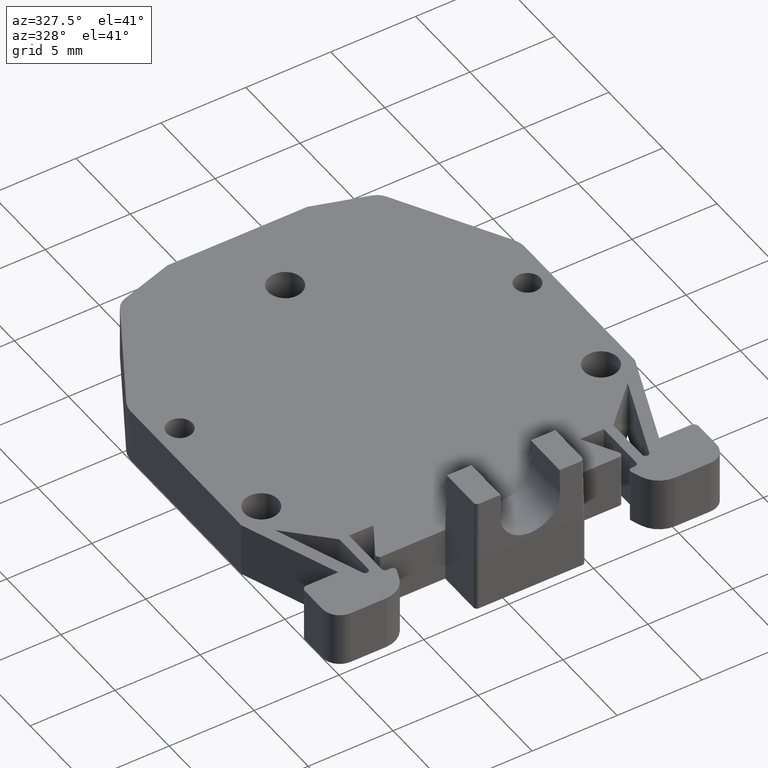
[diagram: clean part render]
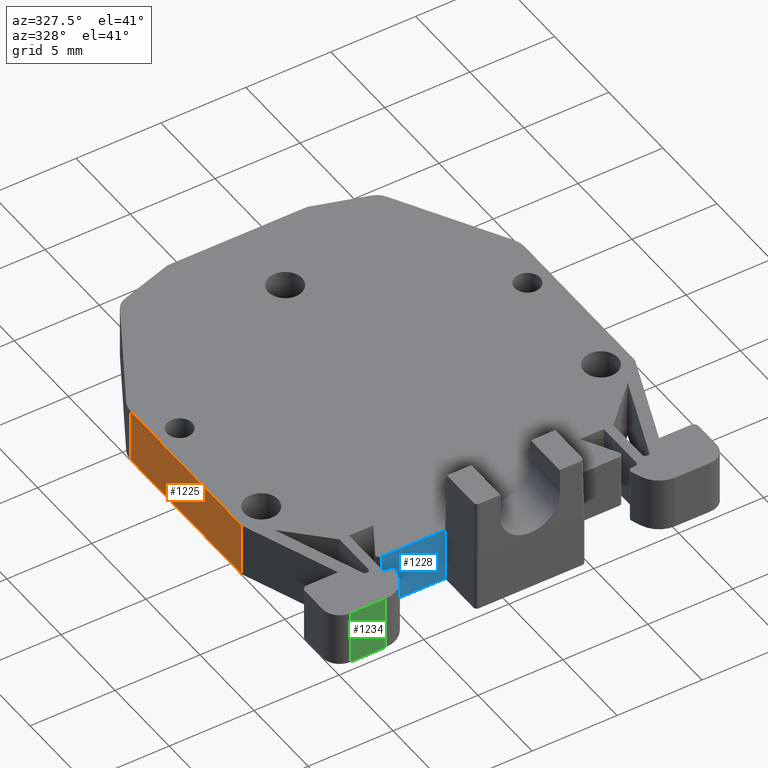
[diagram: same view with three faces highlighted in distinct colors, each labeled with its STEP entity id]
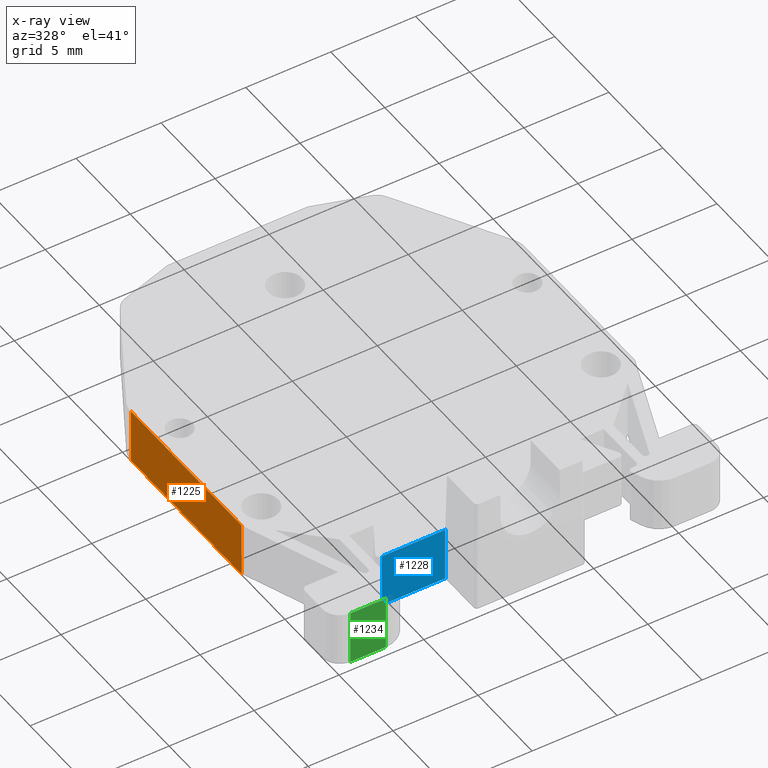
[diagram: x-ray of the same camera — body ghosted, the three highlighted faces saturated]
A machine part, auxiliary view with three faces highlighted in distinct colors.
The next image is the same camera in x-ray (body ghosted, the three faces saturated) — at least one of them is partly hidden behind the body in this view.
Their STEP definitions:

[orange] entity #1225 — the highlighted planar face has unit normal (1, 0, -0).
#398 = DIRECTION ( 'NONE',  ( 1.000000000000000000, 0.0000000000000000000, -0.0000000000000000000 ) ) ;
#401 = DIRECTION ( 'NONE',  ( -0.0000000000000000000, 0.0000000000000000000, -1.000000000000000000 ) ) ;
#405 = PLANE ( 'NONE',  #1403 ) ;
#424 = FACE_OUTER_BOUND ( 'NONE', #1705, .T. ) ;
#429 = CARTESIAN_POINT ( 'NONE',  ( 219.6859378434504900, 448.7791873159291100, 8.439999999999999500 ) ) ;
#618 = CARTESIAN_POINT ( 'NONE',  ( 219.6859378434504900, 478.7419330427189800, 8.439999999999999500 ) ) ;
#621 = CARTESIAN_POINT ( 'NONE',  ( 219.6859378434504900, 468.5237873389456800, 8.439999999999999500 ) ) ;
#624 = CARTESIAN_POINT ( 'NONE',  ( 219.6859378434504900, 478.7419330427189800, 11.63999999999999900 ) ) ;
#714 = CARTESIAN_POINT ( 'NONE',  ( 219.6859378434504900, 468.5237873389452300, 11.64000000000000100 ) ) ;
#858 = EDGE_CURVE ( 'NONE', #1556, #1548, #3384, .T. ) ;
#979 = EDGE_CURVE ( 'NONE', #1654, #1537, #2749, .T. ) ;
#1049 = EDGE_CURVE ( 'NONE', #1548, #1537, #3007, .T. ) ;
#1075 = EDGE_CURVE ( 'NONE', #1654, #1556, #3026, .T. ) ;
#1225 = ADVANCED_FACE ( 'NONE', ( #424 ), #405, .F. ) ;
#1403 = AXIS2_PLACEMENT_3D ( 'NONE', #429, #398, #401 ) ;
#1537 = VERTEX_POINT ( 'NONE', #624 ) ;
#1548 = VERTEX_POINT ( 'NONE', #618 ) ;
#1556 = VERTEX_POINT ( 'NONE', #621 ) ;
#1654 = VERTEX_POINT ( 'NONE', #714 ) ;
#1705 = EDGE_LOOP ( 'NONE', ( #2104, #2084, #2106, #2090 ) ) ;
#2084 = ORIENTED_EDGE ( 'NONE', *, *, #858, .F. ) ;
#2090 = ORIENTED_EDGE ( 'NONE', *, *, #979, .T. ) ;
#2104 = ORIENTED_EDGE ( 'NONE', *, *, #1049, .F. ) ;
#2106 = ORIENTED_EDGE ( 'NONE', *, *, #1075, .F. ) ;
#2308 = VECTOR ( 'NONE', #2984, 1000.000000000000000 ) ;
#2354 = VECTOR ( 'NONE', #3399, 1000.000000000000000 ) ;
#2483 = VECTOR ( 'NONE', #3031, 1000.000000000000000 ) ;
#2511 = VECTOR ( 'NONE', #2787, 1000.000000000000000 ) ;
#2749 = LINE ( 'NONE', #2795, #2511 ) ;
#2787 = DIRECTION ( 'NONE',  ( 0.0000000000000000000, 1.000000000000000000, 0.0000000000000000000 ) ) ;
#2795 = CARTESIAN_POINT ( 'NONE',  ( 219.6859378434504900, 448.7791873159291100, 11.63999999999999900 ) ) ;
#2984 = DIRECTION ( 'NONE',  ( 0.0000000000000000000, -0.0000000000000000000, 1.000000000000000000 ) ) ;
#3005 = CARTESIAN_POINT ( 'NONE',  ( 219.6859378434504900, 478.7419330427189800, 8.439999999999999500 ) ) ;
#3007 = LINE ( 'NONE', #3005, #2308 ) ;
#3026 = LINE ( 'NONE', #3030, #2483 ) ;
#3030 = CARTESIAN_POINT ( 'NONE',  ( 219.6859378434504900, 468.5237873389456800, -5.945817934377599200 ) ) ;
#3031 = DIRECTION ( 'NONE',  ( 0.0000000000000000000, 0.0000000000000000000, -1.000000000000000000 ) ) ;
#3372 = CARTESIAN_POINT ( 'NONE',  ( 219.6859378434504900, 448.7791873159291100, 8.439999999999999500 ) ) ;
#3384 = LINE ( 'NONE', #3372, #2354 ) ;
#3399 = DIRECTION ( 'NONE',  ( 0.0000000000000000000, 1.000000000000000000, 0.0000000000000000000 ) ) ;

[blue] entity #1228 — the highlighted planar face has unit normal (0, -1, 0).
#432 = FACE_OUTER_BOUND ( 'NONE', #1673, .T. ) ;
#434 = PLANE ( 'NONE',  #1398 ) ;
#437 = DIRECTION ( 'NONE',  ( 0.0000000000000000000, -1.000000000000000000, 0.0000000000000000000 ) ) ;
#448 = CARTESIAN_POINT ( 'NONE',  ( 224.3954176410815100, 462.7966268555720700, -5.354219571998889600 ) ) ;
#464 = DIRECTION ( 'NONE',  ( 0.0000000000000000000, -0.0000000000000000000, -1.000000000000000000 ) ) ;
#594 = CARTESIAN_POINT ( 'NONE',  ( 224.2954176410779000, 462.7966268555720700, 8.439999999999999500 ) ) ;
#623 = CARTESIAN_POINT ( 'NONE',  ( 228.0359378434510200, 462.7966268555720700, 8.439999999999999500 ) ) ;
#639 = CARTESIAN_POINT ( 'NONE',  ( 228.0359378434509700, 462.7966268555720700, 11.63999999999993800 ) ) ;
#708 = CARTESIAN_POINT ( 'NONE',  ( 224.2954176410779000, 462.7966268555720700, 11.64000000000000100 ) ) ;
#878 = EDGE_CURVE ( 'NONE', #1527, #1531, #3436, .T. ) ;
#1012 = EDGE_CURVE ( 'NONE', #1625, #1658, #2862, .T. ) ;
#1054 = EDGE_CURVE ( 'NONE', #1658, #1527, #3006, .T. ) ;
#1056 = EDGE_CURVE ( 'NONE', #1531, #1625, #2972, .T. ) ;
#1228 = ADVANCED_FACE ( 'NONE', ( #432 ), #434, .T. ) ;
#1398 = AXIS2_PLACEMENT_3D ( 'NONE', #448, #437, #464 ) ;
#1527 = VERTEX_POINT ( 'NONE', #594 ) ;
#1531 = VERTEX_POINT ( 'NONE', #623 ) ;
#1625 = VERTEX_POINT ( 'NONE', #639 ) ;
#1658 = VERTEX_POINT ( 'NONE', #708 ) ;
#1673 = EDGE_LOOP ( 'NONE', ( #2008, #1978, #2002, #1963 ) ) ;
#1963 = ORIENTED_EDGE ( 'NONE', *, *, #1054, .T. ) ;
#1978 = ORIENTED_EDGE ( 'NONE', *, *, #1056, .T. ) ;
#2002 = ORIENTED_EDGE ( 'NONE', *, *, #1012, .T. ) ;
#2008 = ORIENTED_EDGE ( 'NONE', *, *, #878, .T. ) ;
#2327 = VECTOR ( 'NONE', #2978, 1000.000000000000000 ) ;
#2329 = VECTOR ( 'NONE', #2995, 1000.000000000000000 ) ;
#2389 = VECTOR ( 'NONE', #3406, 1000.000000000000000 ) ;
#2536 = VECTOR ( 'NONE', #2884, 1000.000000000000000 ) ;
#2862 = LINE ( 'NONE', #2864, #2536 ) ;
#2864 = CARTESIAN_POINT ( 'NONE',  ( 231.0956566263090200, 462.7966268555720700, 11.63999999999999900 ) ) ;
#2884 = DIRECTION ( 'NONE',  ( -1.000000000000000000, 0.0000000000000000000, -0.0000000000000000000 ) ) ;
#2972 = LINE ( 'NONE', #2979, #2329 ) ;
#2978 = DIRECTION ( 'NONE',  ( 0.0000000000000000000, -0.0000000000000000000, -1.000000000000000000 ) ) ;
#2979 = CARTESIAN_POINT ( 'NONE',  ( 228.0359378434510500, 462.7966268555720700, -5.354219571998889600 ) ) ;
#2994 = CARTESIAN_POINT ( 'NONE',  ( 224.2954176410815100, 462.7966268555720700, -5.354219571998889600 ) ) ;
#2995 = DIRECTION ( 'NONE',  ( -0.0000000000000000000, 0.0000000000000000000, 1.000000000000000000 ) ) ;
#3006 = LINE ( 'NONE', #2994, #2327 ) ;
#3406 = DIRECTION ( 'NONE',  ( 1.000000000000000000, 0.0000000000000000000, 0.0000000000000000000 ) ) ;
#3436 = LINE ( 'NONE', #3440, #2389 ) ;
#3440 = CARTESIAN_POINT ( 'NONE',  ( 224.3954176410815100, 462.7966268555720700, 8.439999999999999500 ) ) ;

[green] entity #1234 — the highlighted planar face has unit normal (-0, 1, 0).
#453 = PLANE ( 'NONE',  #1402 ) ;
#454 = CARTESIAN_POINT ( 'NONE',  ( 198.8679609947039900, 460.0003766282159700, -5.945817934377599200 ) ) ;
#456 = DIRECTION ( 'NONE',  ( -2.666480216802935100E-014, 1.000000000000000000, 0.0000000000000000000 ) ) ;
#458 = DIRECTION ( 'NONE',  ( -1.000000000000000000, -2.666480216802935100E-014, 0.0000000000000000000 ) ) ;
#466 = FACE_OUTER_BOUND ( 'NONE', #1665, .T. ) ;
#577 = CARTESIAN_POINT ( 'NONE',  ( 220.6779864925310100, 460.0003766282165400, 8.439999999999999500 ) ) ;
#638 = CARTESIAN_POINT ( 'NONE',  ( 222.7598002214102700, 460.0003766282162600, 11.64000000000000100 ) ) ;
#646 = CARTESIAN_POINT ( 'NONE',  ( 222.7598002214102700, 460.0003766282166000, 8.439999999999999500 ) ) ;
#690 = CARTESIAN_POINT ( 'NONE',  ( 220.6779864925310100, 460.0003766282162600, 11.64000000000000100 ) ) ;
#894 = EDGE_CURVE ( 'NONE', #1573, #1563, #3445, .T. ) ;
#988 = EDGE_CURVE ( 'NONE', #1623, #1602, #2774, .T. ) ;
#1061 = EDGE_CURVE ( 'NONE', #1563, #1602, #3012, .T. ) ;
#1082 = EDGE_CURVE ( 'NONE', #1623, #1573, #3087, .T. ) ;
#1234 = ADVANCED_FACE ( 'NONE', ( #466 ), #453, .F. ) ;
#1402 = AXIS2_PLACEMENT_3D ( 'NONE', #454, #456, #458 ) ;
#1563 = VERTEX_POINT ( 'NONE', #577 ) ;
#1573 = VERTEX_POINT ( 'NONE', #646 ) ;
#1602 = VERTEX_POINT ( 'NONE', #690 ) ;
#1623 = VERTEX_POINT ( 'NONE', #638 ) ;
#1665 = EDGE_LOOP ( 'NONE', ( #2067, #2061, #2086, #2068 ) ) ;
#2061 = ORIENTED_EDGE ( 'NONE', *, *, #988, .T. ) ;
#2067 = ORIENTED_EDGE ( 'NONE', *, *, #1082, .F. ) ;
#2068 = ORIENTED_EDGE ( 'NONE', *, *, #894, .F. ) ;
#2086 = ORIENTED_EDGE ( 'NONE', *, *, #1061, .F. ) ;
#2339 = VECTOR ( 'NONE', #3038, 1000.000000000000000 ) ;
#2351 = VECTOR ( 'NONE', #3064, 1000.000000000000000 ) ;
#2414 = VECTOR ( 'NONE', #3510, 1000.000000000000000 ) ;
#2544 = VECTOR ( 'NONE', #2778, 1000.000000000000000 ) ;
#2774 = LINE ( 'NONE', #2792, #2544 ) ;
#2778 = DIRECTION ( 'NONE',  ( -1.000000000000000000, 0.0000000000000000000, -0.0000000000000000000 ) ) ;
#2792 = CARTESIAN_POINT ( 'NONE',  ( 230.9956566263090300, 460.0003766282159700, 11.63999999999999900 ) ) ;
#3012 = LINE ( 'NONE', #3025, #2339 ) ;
#3025 = CARTESIAN_POINT ( 'NONE',  ( 220.6779864925310100, 460.0003766282165400, -5.945817934377599200 ) ) ;
#3038 = DIRECTION ( 'NONE',  ( 0.0000000000000000000, 0.0000000000000000000, 1.000000000000000000 ) ) ;
#3064 = DIRECTION ( 'NONE',  ( -0.0000000000000000000, -0.0000000000000000000, -1.000000000000000000 ) ) ;
#3074 = CARTESIAN_POINT ( 'NONE',  ( 222.7598002214105000, 460.0003766282166000, -5.945817934377599200 ) ) ;
#3087 = LINE ( 'NONE', #3074, #2351 ) ;
#3445 = LINE ( 'NONE', #3515, #2414 ) ;
#3510 = DIRECTION ( 'NONE',  ( -1.000000000000000000, -2.666480216802935100E-014, 0.0000000000000000000 ) ) ;
#3515 = CARTESIAN_POINT ( 'NONE',  ( 198.8679609947039900, 460.0003766282159700, 8.439999999999999500 ) ) ;